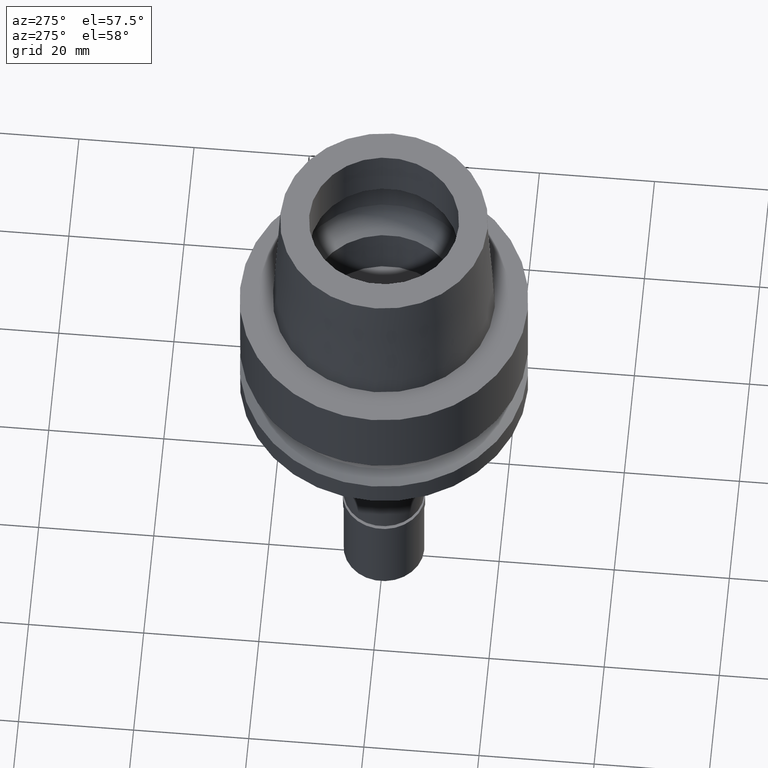
[diagram: clean part render]
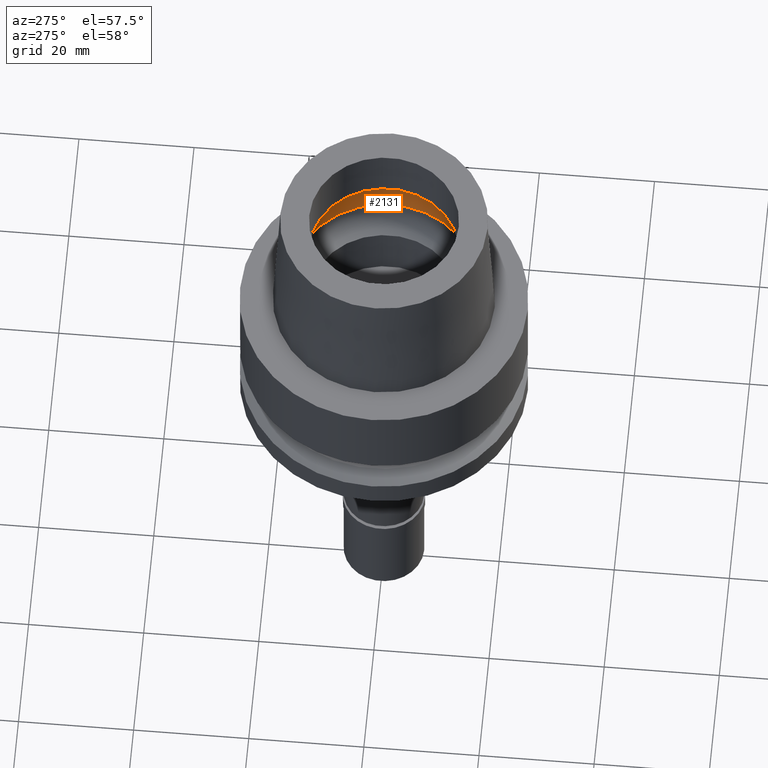
[diagram: same view with one face highlighted and labeled with its STEP entity id]
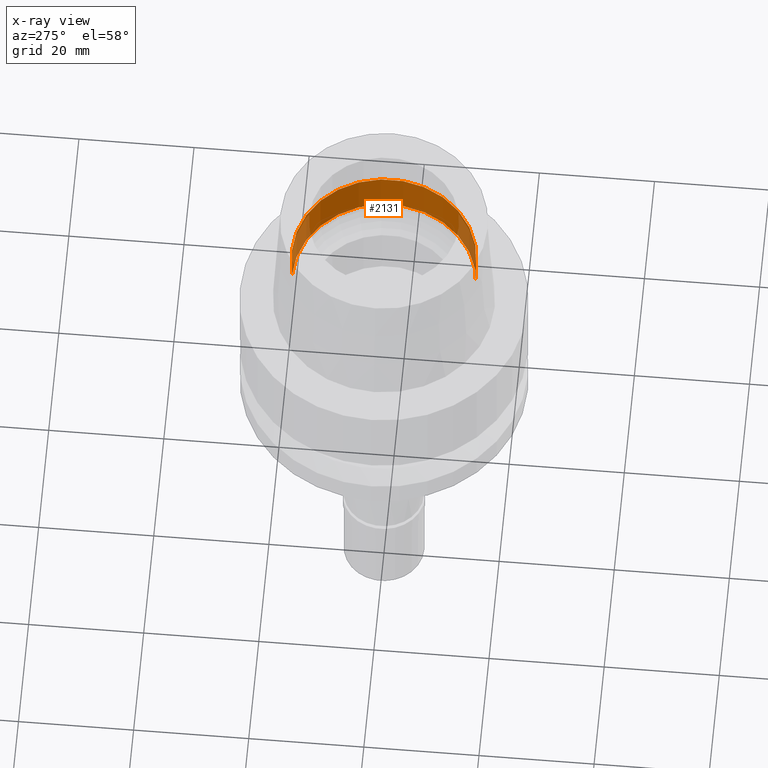
[diagram: x-ray of the same camera — body ghosted, the highlighted face saturated]
A machine part, auxiliary view. The second image highlights one B-rep face of the part: STEP entity #2131.
The next image is the same camera in x-ray: the body ghosted, the highlighted face saturated — about 17% of this face is hidden behind the body in this view.
In plain terms, the highlighted cylindrical surface (partial cylindrical patch) has radius 16 mm, axis along (0, 0, -1).
Its self-contained STEP definition (entity closure, byte-faithful):
#11 = CARTESIAN_POINT ( 'NONE',  ( 0.0000000000000000000, 0.0000000000000000000, 13.26397459622000063 ) ) ;
#26 = DIRECTION ( 'NONE',  ( 0.0000000000000000000, 1.000000000000000000, 0.0000000000000000000 ) ) ;
#157 = DIRECTION ( 'NONE',  ( 0.0000000000000000000, 0.0000000000000000000, -1.000000000000000000 ) ) ;
#256 = FACE_OUTER_BOUND ( 'NONE', #1104, .T. ) ;
#266 = CARTESIAN_POINT ( 'NONE',  ( 0.0000000000000000000, 16.00000000000000000, 5.245999999999999552 ) ) ;
#373 = ORIENTED_EDGE ( 'NONE', *, *, #632, .T. ) ;
#439 = EDGE_CURVE ( 'NONE', #639, #2454, #787, .T. ) ;
#625 = VECTOR ( 'NONE', #2641, 1000.000000000000000 ) ;
#632 = EDGE_CURVE ( 'NONE', #1391, #639, #1646, .T. ) ;
#639 = VERTEX_POINT ( 'NONE', #2652 ) ;
#734 = LINE ( 'NONE', #1376, #2142 ) ;
#787 = LINE ( 'NONE', #1654, #625 ) ;
#815 = EDGE_CURVE ( 'NONE', #1391, #1988, #734, .T. ) ;
#855 = DIRECTION ( 'NONE',  ( 0.0000000000000000000, -1.000000000000000000, 0.0000000000000000000 ) ) ;
#1013 = CARTESIAN_POINT ( 'NONE',  ( 0.0000000000000000000, 0.0000000000000000000, 5.245999999999999552 ) ) ;
#1099 = DIRECTION ( 'NONE',  ( 0.0000000000000000000, 0.0000000000000000000, 1.000000000000000000 ) ) ;
#1104 = EDGE_LOOP ( 'NONE', ( #373, #1520, #2247, #1455 ) ) ;
#1139 = CYLINDRICAL_SURFACE ( 'NONE', #2495, 16.00000000000000000 ) ;
#1140 = CARTESIAN_POINT ( 'NONE',  ( 0.0000000000000000000, 16.00000000000000000, 13.26397459622000063 ) ) ;
#1227 = AXIS2_PLACEMENT_3D ( 'NONE', #11, #1099, #855 ) ;
#1336 = DIRECTION ( 'NONE',  ( 0.0000000000000000000, 0.0000000000000000000, -1.000000000000000000 ) ) ;
#1376 = CARTESIAN_POINT ( 'NONE',  ( 0.0000000000000000000, 16.00000000000000000, 5.245999999999999552 ) ) ;
#1391 = VERTEX_POINT ( 'NONE', #266 ) ;
#1455 = ORIENTED_EDGE ( 'NONE', *, *, #815, .F. ) ;
#1520 = ORIENTED_EDGE ( 'NONE', *, *, #439, .T. ) ;
#1537 = DIRECTION ( 'NONE',  ( 0.0000000000000000000, -1.000000000000000000, 0.0000000000000000000 ) ) ;
#1646 = CIRCLE ( 'NONE', #1932, 16.00000000000000000 ) ;
#1654 = CARTESIAN_POINT ( 'NONE',  ( 0.0000000000000000000, -16.00000000000000000, 5.245999999999999552 ) ) ;
#1847 = EDGE_CURVE ( 'NONE', #2454, #1988, #2366, .T. ) ;
#1932 = AXIS2_PLACEMENT_3D ( 'NONE', #1013, #157, #26 ) ;
#1988 = VERTEX_POINT ( 'NONE', #1140 ) ;
#2131 = ADVANCED_FACE ( 'NONE', ( #256 ), #1139, .F. ) ;
#2142 = VECTOR ( 'NONE', #2437, 1000.000000000000000 ) ;
#2247 = ORIENTED_EDGE ( 'NONE', *, *, #1847, .T. ) ;
#2366 = CIRCLE ( 'NONE', #1227, 16.00000000000000000 ) ;
#2437 = DIRECTION ( 'NONE',  ( 0.0000000000000000000, -1.200783808180999962E-13, 1.000000000000000000 ) ) ;
#2454 = VERTEX_POINT ( 'NONE', #2675 ) ;
#2495 = AXIS2_PLACEMENT_3D ( 'NONE', #2538, #1336, #1537 ) ;
#2538 = CARTESIAN_POINT ( 'NONE',  ( 0.0000000000000000000, 0.0000000000000000000, 30.05000000000000071 ) ) ;
#2641 = DIRECTION ( 'NONE',  ( 0.0000000000000000000, 1.200783808180999962E-13, 1.000000000000000000 ) ) ;
#2652 = CARTESIAN_POINT ( 'NONE',  ( 0.0000000000000000000, -16.00000000000000000, 5.245999999999999552 ) ) ;
#2675 = CARTESIAN_POINT ( 'NONE',  ( 0.0000000000000000000, -16.00000000000000000, 13.26397459622000063 ) ) ;